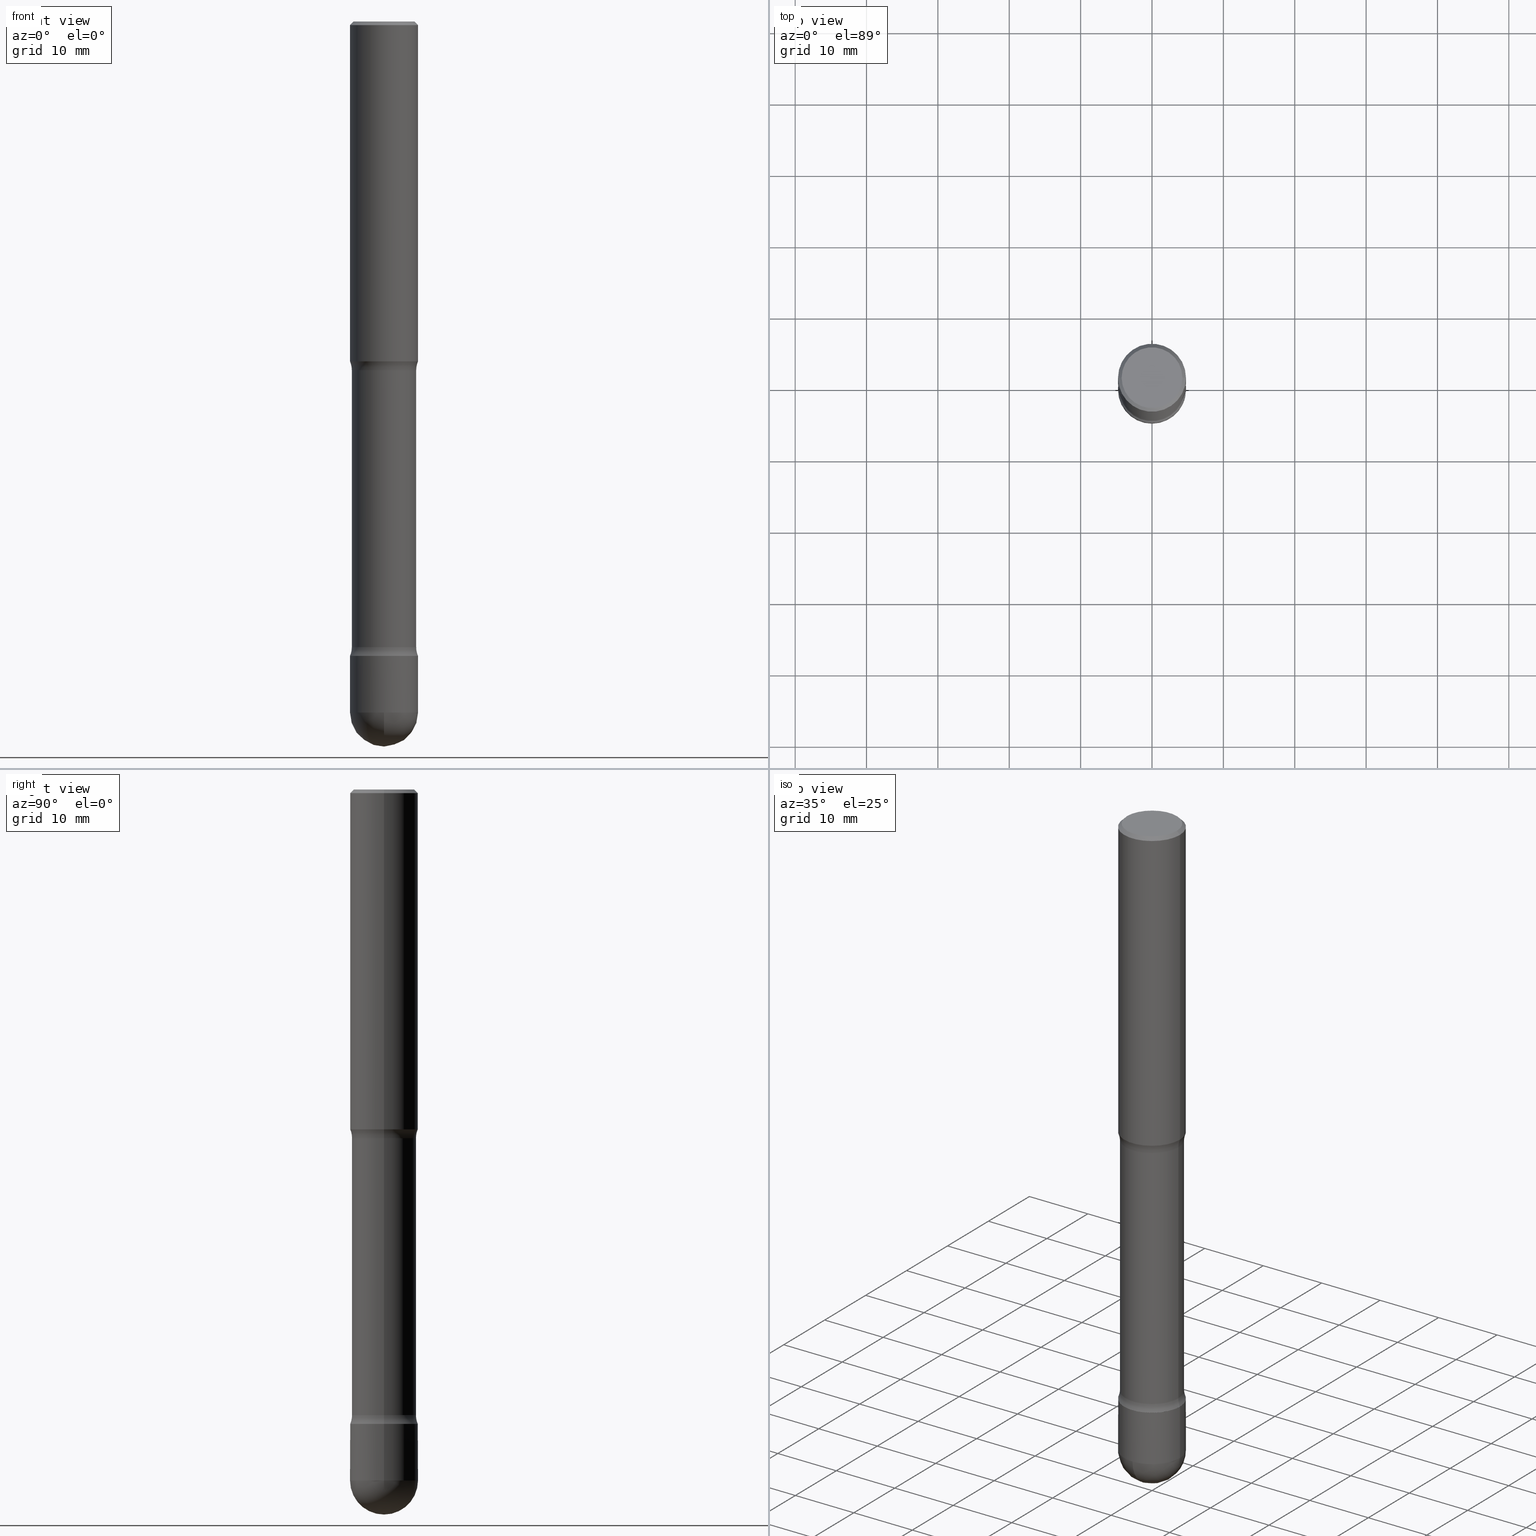
[diagram: canonical four-view strip — front | top / right | iso, engineering-drawing reading convention]
A machine part, canonical four-view strip (front | top / right | iso — engineering-drawing reading convention). The complete STEP part file that produces these views, byte-faithful:
ISO-10303-21;
HEADER;
FILE_DESCRIPTION (( 'STEP AP203' ),
    '1' );
FILE_NAME ('35008.STEP',
    '2024-02-29T19:24:02',
    ( '' ),
    ( '' ),
    'SwSTEP 2.0',
    'SolidWorks 2023',
    '' );
FILE_SCHEMA (( 'CONFIG_CONTROL_DESIGN' ));
ENDSEC;

DATA;
#1 = VECTOR ( 'NONE', #376, 39.37007874015748143 ) ;
#2 = AXIS2_PLACEMENT_3D ( 'NONE', #349, #118, #465 ) ;
#3 = EDGE_LOOP ( 'NONE', ( #392, #314, #312, #436 ) ) ;
#4 = PRODUCT ( '35008', '35008', '', ( #200 ) ) ;
#5 = EDGE_LOOP ( 'NONE', ( #40, #446, #89, #471 ) ) ;
#6 = DIRECTION ( 'NONE',  ( 1.000000000000000000, -6.982962677686265133E-15, 0.000000000000000000 ) ) ;
#7 = DIRECTION ( 'NONE',  ( 2.445468806185136597E-29, -3.491481338843145583E-15, -1.000000000000000000 ) ) ;
#8 = CARTESIAN_POINT ( 'NONE',  ( 8.559140821647976968E-29, -1.222018468595100934E-14, -3.500000000000000000 ) ) ;
#9 = CARTESIAN_POINT ( 'NONE',  ( 0.1874999999999997502, -1.356173001359022508E-15, -0.01999999999999978531 ) ) ;
#10 = PERSON_AND_ORGANIZATION ( #558, #341 ) ;
#11 = DIRECTION ( 'NONE',  ( -2.445468806185136597E-29, 3.491481338843145583E-15, 1.000000000000000000 ) ) ;
#12 = CARTESIAN_POINT ( 'NONE',  ( 8.559140821647976968E-29, -1.222018468595100934E-14, -3.500000000000000000 ) ) ;
#13 = AXIS2_PLACEMENT_3D ( 'NONE', #8, #11, #184 ) ;
#14 = AXIS2_PLACEMENT_3D ( 'NONE', #229, #55, #232 ) ;
#15 = ADVANCED_FACE ( 'NONE', ( #532 ), #337, .T. ) ;
#16 = VERTEX_POINT ( 'NONE', #396 ) ;
#17 = CARTESIAN_POINT ( 'NONE',  ( -0.1874999999999997502, 1.239475875289310921E-15, -0.01999999999999978531 ) ) ;
#18 = APPROVAL_DATE_TIME ( #148, #119 ) ;
#19 = DIRECTION ( 'NONE',  ( 2.445468806185136597E-29, -3.491481338843145583E-15, -1.000000000000000000 ) ) ;
#20 = ADVANCED_FACE ( 'NONE', ( #140 ), #58, .T. ) ;
#21 = DIRECTION ( 'NONE',  ( -6.982962677686266711E-15, -1.000000000000000000, 3.491481338843145583E-15 ) ) ;
#22 = CARTESIAN_POINT ( 'NONE',  ( 0.1874999999999996392, -1.309305502066172642E-15, 9.142831454617361395E-30 ) ) ;
#23 = CIRCLE ( 'NONE', #168, 0.1869999999999996387 ) ;
#24 = CARTESIAN_POINT ( 'NONE',  ( 8.559140821647976968E-29, -1.222018468595100934E-14, -3.500000000000000000 ) ) ;
#25 = AXIS2_PLACEMENT_3D ( 'NONE', #50, #59, #323 ) ;
#26 = PERSON_AND_ORGANIZATION ( #558, #341 ) ;
#27 = CARTESIAN_POINT ( 'NONE',  ( -0.1869999999999996387, -1.088960961525404312E-14, -3.500000000000000000 ) ) ;
#28 = DIRECTION ( 'NONE',  ( -1.000000000000000000, 6.982962677686265922E-15, 0.000000000000000000 ) ) ;
#29 = AXIS2_PLACEMENT_3D ( 'NONE', #485, #49, #488 ) ;
#30 = CIRCLE ( 'NONE', #39, 0.1874999999999996669 ) ;
#31 = CARTESIAN_POINT ( 'NONE',  ( 0.1869999999999996387, -1.352599870667833819E-14, -3.500000000000000000 ) ) ;
#32 = ORIENTED_EDGE ( 'NONE', *, *, #535, .F. ) ;
#33 = CYLINDRICAL_SURFACE ( 'NONE', #273, 0.1874999999999998890 ) ;
#34 = ORIENTED_EDGE ( 'NONE', *, *, #63, .T. ) ;
#35 = CARTESIAN_POINT ( 'NONE',  ( -0.1869999999999996387, -1.089146977007962318E-14, -3.500000000000000000 ) ) ;
#36 = ORIENTED_EDGE ( 'NONE', *, *, #145, .F. ) ;
#37 = VECTOR ( 'NONE', #213, 39.37007874015748143 ) ;
#38 = FACE_OUTER_BOUND ( 'NONE', #432, .T. ) ;
#39 = AXIS2_PLACEMENT_3D ( 'NONE', #241, #452, #443 ) ;
#40 = ORIENTED_EDGE ( 'NONE', *, *, #444, .F. ) ;
#41 = CC_DESIGN_PERSON_AND_ORGANIZATION_ASSIGNMENT ( #445, #455, ( #137 ) ) ;
#42 = ORIENTED_EDGE ( 'NONE', *, *, #418, .T. ) ;
#43 = ADVANCED_FACE ( 'NONE', ( #222 ), #234, .T. ) ;
#44 = DIRECTION ( 'NONE',  ( -1.000000000000000000, 6.982962677686265922E-15, -4.876176775795935793E-29 ) ) ;
#45 = ORIENTED_EDGE ( 'NONE', *, *, #404, .F. ) ;
#46 = EDGE_LOOP ( 'NONE', ( #231, #135, #470, #218 ) ) ;
#47 = ORIENTED_EDGE ( 'NONE', *, *, #547, .F. ) ;
#48 = AXIS2_PLACEMENT_3D ( 'NONE', #472, #86, #174 ) ;
#49 = DIRECTION ( 'NONE',  ( -2.438088387897960049E-29, 3.491481338843145188E-15, 1.000000000000000000 ) ) ;
#50 = CARTESIAN_POINT ( 'NONE',  ( 8.439337806507044109E-29, -1.204913773141870678E-14, -3.451010205144336762 ) ) ;
#51 = ORIENTED_EDGE ( 'NONE', *, *, #159, .T. ) ;
#52 = FACE_OUTER_BOUND ( 'NONE', #5, .T. ) ;
#53 = COORDINATED_UNIVERSAL_TIME_OFFSET ( 5, 0, .BEHIND. ) ;
#54 = ORIENTED_EDGE ( 'NONE', *, *, #379, .F. ) ;
#55 = DIRECTION ( 'NONE',  ( -2.445468806185136597E-29, 3.491481338843145583E-15, 1.000000000000000000 ) ) ;
#56 = ADVANCED_FACE ( 'NONE', ( #492 ), #97, .T. ) ;
#57 = PERSON_AND_ORGANIZATION_ROLE ( 'design_supplier' ) ;
#58 = PLANE ( 'NONE',  #29 ) ;
#59 = DIRECTION ( 'NONE',  ( 2.445468806185136597E-29, -3.491481338843145583E-15, -1.000000000000000000 ) ) ;
#60 = AXIS2_PLACEMENT_3D ( 'NONE', #373, #157, #28 ) ;
#61 = AXIS2_PLACEMENT_3D ( 'NONE', #537, #530, #366 ) ;
#62 = COORDINATED_UNIVERSAL_TIME_OFFSET ( 5, 0, .BEHIND. ) ;
#63 = EDGE_CURVE ( 'NONE', #382, #125, #131, .T. ) ;
#64 = EDGE_CURVE ( 'NONE', #554, #559, #114, .T. ) ;
#65 = ADVANCED_FACE ( 'NONE', ( #182 ), #355, .T. ) ;
#66 = CARTESIAN_POINT ( 'NONE',  ( 0.1674999999999997047, -1.252653207992876119E-15, 8.469775550109222569E-30 ) ) ;
#67 = FACE_OUTER_BOUND ( 'NONE', #212, .T. ) ;
#68 = APPROVAL_DATE_TIME ( #487, #469 ) ;
#69 = CARTESIAN_POINT ( 'NONE',  ( 0.1869999999999996387, -1.352661159257241509E-14, -3.500000000000000000 ) ) ;
#70 = PERSON_AND_ORGANIZATION_ROLE ( 'creator' ) ;
#71 = CC_DESIGN_DATE_AND_TIME_ASSIGNMENT ( #195, #243, ( #412 ) ) ;
#72 = CARTESIAN_POINT ( 'NONE',  ( 4.705057026738065659E-29, -6.717574464863202053E-15, -1.923989794855663904 ) ) ;
#73 = AXIS2_PLACEMENT_3D ( 'NONE', #299, #513, #81 ) ;
#74 = FACE_OUTER_BOUND ( 'NONE', #3, .T. ) ;
#75 = DIRECTION ( 'NONE',  ( -2.445468806185136877E-29, 3.491481338843145188E-15, 1.000000000000000000 ) ) ;
#76 = ADVANCED_FACE ( 'NONE', ( #74 ), #407, .T. ) ;
#77 = CARTESIAN_POINT ( 'NONE',  ( 0.1874999999999997502, -1.356173001359022508E-15, -0.01999999999999978531 ) ) ;
#78 = AXIS2_PLACEMENT_3D ( 'NONE', #281, #357, #278 ) ;
#79 = CARTESIAN_POINT ( 'NONE',  ( 0.000000000000000000, 0.000000000000000000, 0.000000000000000000 ) ) ;
#80 = ORIENTED_EDGE ( 'NONE', *, *, #250, .F. ) ;
#81 = DIRECTION ( 'NONE',  ( -1.000000000000000000, 6.982962677686269077E-15, 0.000000000000000000 ) ) ;
#82 = ORIENTED_EDGE ( 'NONE', *, *, #565, .T. ) ;
#83 = DIRECTION ( 'NONE',  ( 1.000000000000000000, -6.982962677686265133E-15, 0.000000000000000000 ) ) ;
#84 = ORIENTED_EDGE ( 'NONE', *, *, #282, .T. ) ;
#85 = EDGE_CURVE ( 'NONE', #132, #100, #343, .T. ) ;
#86 = DIRECTION ( 'NONE',  ( -1.000000000000000000, 6.982962677686265922E-15, -4.883557194083112901E-29 ) ) ;
#87 = AXIS2_PLACEMENT_3D ( 'NONE', #136, #486, #406 ) ;
#88 = ORIENTED_EDGE ( 'NONE', *, *, #404, .T. ) ;
#89 = ORIENTED_EDGE ( 'NONE', *, *, #402, .T. ) ;
#90 = ORIENTED_EDGE ( 'NONE', *, *, #147, .F. ) ;
#91 = CIRCLE ( 'NONE', #480, 0.1874999999999997502 ) ;
#92 = AXIS2_PLACEMENT_3D ( 'NONE', #296, #292, #419 ) ;
#93 = ORIENTED_EDGE ( 'NONE', *, *, #309, .T. ) ;
#94 = DIRECTION ( 'NONE',  ( 6.860497997771531562E-15, 1.000000000000000000, -3.491481338843145583E-15 ) ) ;
#95 = SHAPE_DEFINITION_REPRESENTATION ( #394, #230 ) ;
#96 = EDGE_CURVE ( 'NONE', #348, #301, #288, .T. ) ;
#97 = CYLINDRICAL_SURFACE ( 'NONE', #207, 0.1874999999999996392 ) ;
#98 = CARTESIAN_POINT ( 'NONE',  ( 0.1875000000000000278, -4.594521943136043171E-15, -1.875000000000001776 ) ) ;
#99 = APPROVAL_STATUS ( 'not_yet_approved' ) ;
#100 = VERTEX_POINT ( 'NONE', #27 ) ;
#101 = DIRECTION ( 'NONE',  ( 1.000000000000000000, -6.982962677686265922E-15, 4.883557194083112340E-29 ) ) ;
#102 = APPROVAL_ROLE ( '' ) ;
#103 = ADVANCED_FACE ( 'NONE', ( #454 ), #328, .F. ) ;
#104 = DIRECTION ( 'NONE',  ( -1.000000000000000000, 6.982962677686266711E-15, 0.000000000000000000 ) ) ;
#105 = DIRECTION ( 'NONE',  ( -0.7071067811865516806, 2.468850131082300448E-15, -0.7071067811865433539 ) ) ;
#106 = CIRCLE ( 'NONE', #505, 0.1874999999999998335 ) ;
#107 = CALENDAR_DATE ( 2024, 29, 2 ) ;
#108 = LINE ( 'NONE', #203, #459 ) ;
#109 = APPLICATION_PROTOCOL_DEFINITION ( 'international standard', 'config_control_design', 1994, #521 ) ;
#110 = CC_DESIGN_PERSON_AND_ORGANIZATION_ASSIGNMENT ( #26, #368, ( #412 ) ) ;
#111 = LINE ( 'NONE', #22, #531 ) ;
#112 = DIRECTION ( 'NONE',  ( 2.445468806185136597E-29, -3.491481338843145583E-15, -1.000000000000000000 ) ) ;
#113 = CARTESIAN_POINT ( 'NONE',  ( 0.000000000000000000, 0.000000000000000000, 0.000000000000000000 ) ) ;
#114 = CIRCLE ( 'NONE', #401, 0.1874999999999996669 ) ;
#115 = CIRCLE ( 'NONE', #467, 0.1873510749934462760 ) ;
#116 = CARTESIAN_POINT ( 'NONE',  ( 4.890937612370220610E-31, -6.982962677686216421E-17, -0.01999999999999978531 ) ) ;
#117 = EDGE_CURVE ( 'NONE', #481, #382, #108, .T. ) ;
#118 = DIRECTION ( 'NONE',  ( -2.445468806185136597E-29, 3.491481338843145583E-15, 1.000000000000000000 ) ) ;
#119 = APPROVAL ( #538, 'UNSPECIFIED' ) ;
#120 = CARTESIAN_POINT ( 'NONE',  ( 0.1873510749934463038, -1.350428058903573597E-14, -3.499648925006552780 ) ) ;
#121 = ORIENTED_EDGE ( 'NONE', *, *, #433, .F. ) ;
#122 = AXIS2_PLACEMENT_3D ( 'NONE', #416, #502, #253 ) ;
#123 = AXIS2_PLACEMENT_3D ( 'NONE', #431, #564, #44 ) ;
#124 = DIRECTION ( 'NONE',  ( 2.445468806185136597E-29, -3.491481338843145583E-15, -1.000000000000000000 ) ) ;
#125 = VERTEX_POINT ( 'NONE', #539 ) ;
#126 = MANIFOLD_SOLID_BREP ( 'Body-Move/Copy2[1]', #351 ) ;
#127 = CARTESIAN_POINT ( 'NONE',  ( 8.559140821647976968E-29, -1.222018468595100934E-14, -3.500000000000000000 ) ) ;
#128 = ORIENTED_EDGE ( 'NONE', *, *, #379, .T. ) ;
#129 = SPHERICAL_SURFACE ( 'NONE', #294, 0.1874999999999998335 ) ;
#130 = ORIENTED_EDGE ( 'NONE', *, *, #522, .T. ) ;
#131 = CIRCLE ( 'NONE', #318, 0.1875000000000000278 ) ;
#132 = VERTEX_POINT ( 'NONE', #69 ) ;
#133 = DIRECTION ( 'NONE',  ( -2.445468806185136597E-29, 3.491481338843145583E-15, 1.000000000000000000 ) ) ;
#134 = VERTEX_POINT ( 'NONE', #66 ) ;
#135 = ORIENTED_EDGE ( 'NONE', *, *, #535, .T. ) ;
#136 = CARTESIAN_POINT ( 'NONE',  ( 8.439337806507040746E-29, -1.204913773141870205E-14, -3.451010205144335430 ) ) ;
#137 = PRODUCT_DEFINITION_FORMATION_WITH_SPECIFIED_SOURCE ( 'ANY', '', #4, .NOT_KNOWN. ) ;
#138 = VECTOR ( 'NONE', #258, 39.37007874015748143 ) ;
#139 = AXIS2_PLACEMENT_3D ( 'NONE', #493, #94, #408 ) ;
#140 = FACE_OUTER_BOUND ( 'NONE', #221, .T. ) ;
#141 = FACE_OUTER_BOUND ( 'NONE', #315, .T. ) ;
#142 = APPROVAL_DATE_TIME ( #409, #251 ) ;
#143 = ADVANCED_FACE ( 'NONE', ( #242 ), #549, .T. ) ;
#144 = VERTEX_POINT ( 'NONE', #247 ) ;
#145 = EDGE_CURVE ( 'NONE', #434, #259, #179, .T. ) ;
#146 = CARTESIAN_POINT ( 'NONE',  ( -0.1873510749934463038, -1.091069334985921751E-14, -3.499648925006552780 ) ) ;
#147 = EDGE_CURVE ( 'NONE', #346, #257, #111, .T. ) ;
#148 = DATE_AND_TIME ( #499, #437 ) ;
#149 = DIRECTION ( 'NONE',  ( 1.000000000000000000, -6.982962677686267499E-15, 4.876176775795935232E-29 ) ) ;
#150 = CYLINDRICAL_SURFACE ( 'NONE', #403, 0.1774999999999998246 ) ;
#151 = PERSON_AND_ORGANIZATION ( #558, #341 ) ;
#152 = CARTESIAN_POINT ( 'NONE',  ( 0.1774999999999998246, -1.343792308055545500E-14, -3.500000000000000000 ) ) ;
#153 = CARTESIAN_POINT ( 'NONE',  ( -0.3024999999999878897, -4.605228254863190623E-15, -1.923989794855663904 ) ) ;
#154 = AXIS2_PLACEMENT_3D ( 'NONE', #237, #527, #320 ) ;
#155 = LINE ( 'NONE', #330, #1 ) ;
#156 = CALENDAR_DATE ( 2024, 29, 2 ) ;
#157 = DIRECTION ( 'NONE',  ( 2.445468806185136597E-29, -3.491481338843145583E-15, -1.000000000000000000 ) ) ;
#158 =( NAMED_UNIT ( * ) SI_UNIT ( $, .STERADIAN. ) SOLID_ANGLE_UNIT ( ) );
#159 = EDGE_CURVE ( 'NONE', #125, #382, #494, .T. ) ;
#160 = DIRECTION ( 'NONE',  ( -1.000000000000000000, 6.982962677686268288E-15, 0.000000000000000000 ) ) ;
#161 = CONICAL_SURFACE ( 'NONE', #255, 0.1874999999999997502, 0.7853981633974541632 ) ;
#162 = CIRCLE ( 'NONE', #285, 0.1249999999999882871 ) ;
#163 = CARTESIAN_POINT ( 'NONE',  ( 4.705057026738065659E-29, -6.717574464863202053E-15, -1.923989794855663904 ) ) ;
#164 = ADVANCED_FACE ( 'NONE', ( #545 ), #161, .T. ) ;
#165 = DIRECTION ( 'NONE',  ( -1.000000000000000000, 6.982962677686265922E-15, -4.883557194083112901E-29 ) ) ;
#166 = ORIENTED_EDGE ( 'NONE', *, *, #563, .F. ) ;
#167 = CARTESIAN_POINT ( 'NONE',  ( 9.392832084576658456E-29, -1.321177005190876857E-14, -3.812500000000000000 ) ) ;
#168 = AXIS2_PLACEMENT_3D ( 'NONE', #24, #112, #293 ) ;
#169 = ORIENTED_EDGE ( 'NONE', *, *, #524, .T. ) ;
#170 = AXIS2_PLACEMENT_3D ( 'NONE', #116, #410, #205 ) ;
#171 = CIRCLE ( 'NONE', #14, 0.1874999999999996669 ) ;
#172 = DIRECTION ( 'NONE',  ( 1.000000000000000000, -6.982962677686266711E-15, 0.000000000000000000 ) ) ;
#173 = ORIENTED_EDGE ( 'NONE', *, *, #515, .F. ) ;
#174 = DIRECTION ( 'NONE',  ( 6.982962677686265922E-15, 1.000000000000000000, -2.913971193241883133E-15 ) ) ;
#175 = VERTEX_POINT ( 'NONE', #196 ) ;
#176 = EDGE_CURVE ( 'NONE', #514, #125, #155, .T. ) ;
#177 = CARTESIAN_POINT ( 'NONE',  ( 0.1774999999999996025, -7.884091872190356263E-15, -1.923989794855663904 ) ) ;
#178 = ORIENTED_EDGE ( 'NONE', *, *, #506, .T. ) ;
#179 = CIRCLE ( 'NONE', #122, 0.1873510749934462760 ) ;
#180 = ORIENTED_EDGE ( 'NONE', *, *, #560, .T. ) ;
#181 = ORIENTED_EDGE ( 'NONE', *, *, #85, .F. ) ;
#182 = FACE_OUTER_BOUND ( 'NONE', #474, .T. ) ;
#183 = LINE ( 'NONE', #286, #484 ) ;
#184 = DIRECTION ( 'NONE',  ( 1.000000000000000000, -6.982962677686268288E-15, 0.000000000000000000 ) ) ;
#185 = CARTESIAN_POINT ( 'NONE',  ( 4.705057026738065659E-29, -6.717574464863202053E-15, -1.923989794855663904 ) ) ;
#186 = COORDINATED_UNIVERSAL_TIME_OFFSET ( 5, 0, .BEHIND. ) ;
#187 = DIMENSIONAL_EXPONENTS ( 1.000000000000000000, 0.000000000000000000, 0.000000000000000000, 0.000000000000000000, 0.000000000000000000, 0.000000000000000000, 0.000000000000000000 ) ;
#188 = CIRCLE ( 'NONE', #483, 0.1774999999999996025 ) ;
#189 = EDGE_CURVE ( 'NONE', #348, #322, #188, .T. ) ;
#190 = VECTOR ( 'NONE', #233, 39.37007874015748143 ) ;
#191 = EDGE_LOOP ( 'NONE', ( #261, #93 ) ) ;
#192 = DIRECTION ( 'NONE',  ( 2.445468806185136597E-29, -3.491481338843145583E-15, -1.000000000000000000 ) ) ;
#193 = ORIENTED_EDGE ( 'NONE', *, *, #117, .F. ) ;
#194 = CARTESIAN_POINT ( 'NONE',  ( -0.1874999999999997502, 1.239475875289310921E-15, -0.01999999999999978531 ) ) ;
#195 = DATE_AND_TIME ( #107, #458 ) ;
#196 = CARTESIAN_POINT ( 'NONE',  ( 9.859374669697428406E-29, -1.385494173919985124E-14, -4.000000000000000000 ) ) ;
#197 = CARTESIAN_POINT ( 'NONE',  ( -0.1874999999999996392, 1.332267629550185285E-15, -9.223003294227931175E-30 ) ) ;
#198 = DIRECTION ( 'NONE',  ( -1.000000000000000000, 6.982962677686265133E-15, 0.000000000000000000 ) ) ;
#199 = TOROIDAL_SURFACE ( 'NONE', #78, 0.3024999999999878897, 0.1249999999999882871 ) ;
#200 = MECHANICAL_CONTEXT ( 'NONE', #521, 'mechanical' ) ;
#201 = DIRECTION ( 'NONE',  ( -6.982962677686266711E-15, -1.000000000000000000, 3.491481338843145583E-15 ) ) ;
#202 = DIRECTION ( 'NONE',  ( 2.445468806185136597E-29, -3.491481338843145583E-15, -1.000000000000000000 ) ) ;
#203 = CARTESIAN_POINT ( 'NONE',  ( 0.1874999999999998890, -1.350652806053316993E-14, -3.500000000000000000 ) ) ;
#204 = ADVANCED_FACE ( 'NONE', ( #462 ), #497, .T. ) ;
#205 = DIRECTION ( 'NONE',  ( -1.000000000000000000, 6.982962677686265133E-15, 0.000000000000000000 ) ) ;
#206 = EDGE_CURVE ( 'NONE', #434, #144, #300, .T. ) ;
#207 = AXIS2_PLACEMENT_3D ( 'NONE', #536, #133, #149 ) ;
#208 = AXIS2_PLACEMENT_3D ( 'NONE', #364, #489, #541 ) ;
#209 = DIRECTION ( 'NONE',  ( 6.860497997771531562E-15, 1.000000000000000000, -3.491481338843145583E-15 ) ) ;
#210 = ORIENTED_EDGE ( 'NONE', *, *, #145, .T. ) ;
#211 = CARTESIAN_POINT ( 'NONE',  ( 1.309305502066266713E-15, 0.1874999999999864830, -3.812500000000000444 ) ) ;
#212 = EDGE_LOOP ( 'NONE', ( #526, #42, #34, #173 ) ) ;
#213 = DIRECTION ( 'NONE',  ( -0.7071067811859972352, 7.493145998868366231E-15, 0.7071067811870977993 ) ) ;
#214 = ORIENTED_EDGE ( 'NONE', *, *, #96, .T. ) ;
#215 = AXIS2_PLACEMENT_3D ( 'NONE', #236, #362, #438 ) ;
#216 = APPLICATION_CONTEXT ( 'configuration controlled 3d designs of mechanical parts and assemblies' ) ;
#217 = DIRECTION ( 'NONE',  ( 2.445468806185136597E-29, -3.491481338843145583E-15, -1.000000000000000000 ) ) ;
#218 = ORIENTED_EDGE ( 'NONE', *, *, #422, .F. ) ;
#219 = ADVANCED_FACE ( 'NONE', ( #507 ), #511, .T. ) ;
#220 = CARTESIAN_POINT ( 'NONE',  ( 0.1874999999999996669, -1.407503414721142196E-14, -3.812500000000000000 ) ) ;
#221 = EDGE_LOOP ( 'NONE', ( #354, #32 ) ) ;
#222 = FACE_OUTER_BOUND ( 'NONE', #277, .T. ) ;
#223 = ADVANCED_FACE ( 'NONE', ( #264 ), #302, .T. ) ;
#224 = AXIS2_PLACEMENT_3D ( 'NONE', #456, #19, #160 ) ;
#225 = ORIENTED_EDGE ( 'NONE', *, *, #515, .T. ) ;
#226 = ORIENTED_EDGE ( 'NONE', *, *, #524, .F. ) ;
#227 = DIRECTION ( 'NONE',  ( -1.000000000000000000, 6.982962677686271444E-15, 0.000000000000000000 ) ) ;
#228 = EDGE_LOOP ( 'NONE', ( #193, #307, #405, #359 ) ) ;
#229 = CARTESIAN_POINT ( 'NONE',  ( 9.323349823580833275E-29, -1.331127260433949088E-14, -3.812500000000000000 ) ) ;
#230 = ADVANCED_BREP_SHAPE_REPRESENTATION ( '35008', ( #126, #491, #540 ), #271 ) ;
#231 = ORIENTED_EDGE ( 'NONE', *, *, #276, .F. ) ;
#232 = DIRECTION ( 'NONE',  ( 1.000000000000000000, -6.982962677686265133E-15, 0.000000000000000000 ) ) ;
#233 = DIRECTION ( 'NONE',  ( 0.7071067811859972352, -2.468850131076492854E-15, 0.7071067811870977993 ) ) ;
#234 = CONICAL_SURFACE ( 'NONE', #215, 0.1869999999999996387, 0.7853981633966701237 ) ;
#235 = CIRCLE ( 'NONE', #61, 0.1874999999999998335 ) ;
#236 = CARTESIAN_POINT ( 'NONE',  ( 8.559140821647976968E-29, -1.222018468595100934E-14, -3.500000000000000000 ) ) ;
#237 = CARTESIAN_POINT ( 'NONE',  ( 4.890937612370220610E-31, -6.982962677686216421E-17, -0.01999999999999978531 ) ) ;
#238 = CALENDAR_DATE ( 2024, 29, 2 ) ;
#239 = EDGE_CURVE ( 'NONE', #16, #134, #448, .T. ) ;
#240 = DIRECTION ( 'NONE',  ( 2.445468806185136597E-29, -3.491481338843145583E-15, -1.000000000000000000 ) ) ;
#241 = CARTESIAN_POINT ( 'NONE',  ( 9.323349823580833275E-29, -1.331127260433949088E-14, -3.812500000000000000 ) ) ;
#242 = FACE_OUTER_BOUND ( 'NONE', #468, .T. ) ;
#243 = DATE_TIME_ROLE ( 'classification_date' ) ;
#244 = APPROVAL_PERSON_ORGANIZATION ( #151, #251, #102 ) ;
#245 = CARTESIAN_POINT ( 'NONE',  ( -0.3025000000000078182, -9.936791521418551783E-15, -3.451010205144335430 ) ) ;
#246 = AXIS2_PLACEMENT_3D ( 'NONE', #297, #347, #508 ) ;
#247 = CARTESIAN_POINT ( 'NONE',  ( -0.1775000000000000189, -1.080966185612939350E-14, -3.451010205144336762 ) ) ;
#248 = CC_DESIGN_PERSON_AND_ORGANIZATION_ASSIGNMENT ( #327, #57, ( #137 ) ) ;
#249 = LENGTH_MEASURE_WITH_UNIT ( LENGTH_MEASURE( 0.02539999999999999897 ), #546 );
#250 = EDGE_CURVE ( 'NONE', #144, #301, #556, .T. ) ;
#251 = APPROVAL ( #99, 'UNSPECIFIED' ) ;
#252 = ADVANCED_FACE ( 'NONE', ( #38 ), #519, .F. ) ;
#253 = DIRECTION ( 'NONE',  ( -1.000000000000000000, 6.982962677686271444E-15, 0.000000000000000000 ) ) ;
#254 = CARTESIAN_POINT ( 'NONE',  ( 0.3025000000000078182, -1.412443837574464437E-14, -3.451010205144335430 ) ) ;
#255 = AXIS2_PLACEMENT_3D ( 'NONE', #290, #240, #198 ) ;
#256 = CARTESIAN_POINT ( 'NONE',  ( 9.323349823580833275E-29, -1.331127260433949088E-14, -3.812500000000000000 ) ) ;
#257 = VERTEX_POINT ( 'NONE', #466 ) ;
#258 = DIRECTION ( 'NONE',  ( 0.7071067811865516806, -7.319954787623270245E-15, -0.7071067811865433539 ) ) ;
#259 = VERTEX_POINT ( 'NONE', #120 ) ;
#260 = DIRECTION ( 'NONE',  ( 2.445468806185136597E-29, -3.491481338843145583E-15, -1.000000000000000000 ) ) ;
#261 = ORIENTED_EDGE ( 'NONE', *, *, #361, .T. ) ;
#262 = AXIS2_PLACEMENT_3D ( 'NONE', #256, #551, #83 ) ;
#263 = TOROIDAL_SURFACE ( 'NONE', #87, 0.3025000000000078182, 0.1250000000000078826 ) ;
#264 = FACE_OUTER_BOUND ( 'NONE', #509, .T. ) ;
#265 = ORIENTED_EDGE ( 'NONE', *, *, #282, .F. ) ;
#266 = EDGE_LOOP ( 'NONE', ( #520, #82 ) ) ;
#267 = ORIENTED_EDGE ( 'NONE', *, *, #463, .F. ) ;
#268 = CARTESIAN_POINT ( 'NONE',  ( 9.323349823580833275E-29, -1.331127260433949088E-14, -3.812500000000000000 ) ) ;
#269 = CC_DESIGN_APPROVAL ( #469, ( #412 ) ) ;
#270 = CARTESIAN_POINT ( 'NONE',  ( -0.1874999999999996669, -1.143346101559506542E-14, -3.812500000000000000 ) ) ;
#271 =( GEOMETRIC_REPRESENTATION_CONTEXT ( 3 ) GLOBAL_UNCERTAINTY_ASSIGNED_CONTEXT ( ( #377 ) ) GLOBAL_UNIT_ASSIGNED_CONTEXT ( ( #291, #371, #158 ) ) REPRESENTATION_CONTEXT ( 'NONE', 'WORKASPACE' ) );
#272 = AXIS2_PLACEMENT_3D ( 'NONE', #548, #369, #504 ) ;
#273 = AXIS2_PLACEMENT_3D ( 'NONE', #127, #260, #561 ) ;
#274 = ORIENTED_EDGE ( 'NONE', *, *, #96, .F. ) ;
#275 = CARTESIAN_POINT ( 'NONE',  ( -1.332267629550092396E-15, -0.1875000000000130174, -3.812499999999999112 ) ) ;
#276 = EDGE_CURVE ( 'NONE', #134, #481, #388, .T. ) ;
#277 = EDGE_LOOP ( 'NONE', ( #265, #181, #128, #517 ) ) ;
#278 = DIRECTION ( 'NONE',  ( -1.000000000000000000, 6.982962677686266711E-15, -4.883557194083112340E-29 ) ) ;
#279 = DATE_TIME_ROLE ( 'creation_date' ) ;
#280 = VERTEX_POINT ( 'NONE', #425 ) ;
#281 = CARTESIAN_POINT ( 'NONE',  ( 4.705057026738065659E-29, -6.717574464863202053E-15, -1.923989794855663904 ) ) ;
#282 = EDGE_CURVE ( 'NONE', #100, #434, #381, .T. ) ;
#283 = COORDINATED_UNIVERSAL_TIME_OFFSET ( 5, 0, .BEHIND. ) ;
#284 = CIRCLE ( 'NONE', #518, 0.1250000000000078826 ) ;
#285 = AXIS2_PLACEMENT_3D ( 'NONE', #153, #21, #360 ) ;
#286 = CARTESIAN_POINT ( 'NONE',  ( -0.1774999999999998246, -1.098070881066169763E-14, -3.500000000000000000 ) ) ;
#287 = CALENDAR_DATE ( 2024, 29, 2 ) ;
#288 = LINE ( 'NONE', #152, #420 ) ;
#289 = DIRECTION ( 'NONE',  ( -1.000000000000000000, 6.982962677686269077E-15, 0.000000000000000000 ) ) ;
#290 = CARTESIAN_POINT ( 'NONE',  ( 4.890937612370220610E-31, -6.982962677686216421E-17, -0.01999999999999978531 ) ) ;
#291 =( CONVERSION_BASED_UNIT ( 'INCH', #249 ) LENGTH_UNIT ( ) NAMED_UNIT ( #187 ) );
#292 = DIRECTION ( 'NONE',  ( 2.445468806185136597E-29, -3.491481338843145583E-15, -1.000000000000000000 ) ) ;
#293 = DIRECTION ( 'NONE',  ( -1.000000000000000000, 6.982962677686268288E-15, 0.000000000000000000 ) ) ;
#294 = AXIS2_PLACEMENT_3D ( 'NONE', #167, #165, #339 ) ;
#295 = EDGE_CURVE ( 'NONE', #559, #346, #503, .T. ) ;
#296 = CARTESIAN_POINT ( 'NONE',  ( 4.585254011597135603E-29, -6.546527510330903440E-15, -1.875000000000001776 ) ) ;
#297 = CARTESIAN_POINT ( 'NONE',  ( 0.000000000000000000, 0.000000000000000000, 0.000000000000000000 ) ) ;
#298 = LOCAL_TIME ( 14, 24, 2.000000000000000000, #62 ) ;
#299 = CARTESIAN_POINT ( 'NONE',  ( 8.439337806507044109E-29, -1.204913773141870678E-14, -3.451010205144336762 ) ) ;
#300 = CIRCLE ( 'NONE', #428, 0.1250000000000078826 ) ;
#301 = VERTEX_POINT ( 'NONE', #384 ) ;
#302 = CYLINDRICAL_SURFACE ( 'NONE', #246, 0.1874999999999996392 ) ;
#303 = ORIENTED_EDGE ( 'NONE', *, *, #463, .T. ) ;
#304 = FACE_OUTER_BOUND ( 'NONE', #424, .T. ) ;
#305 = ORIENTED_EDGE ( 'NONE', *, *, #418, .F. ) ;
#306 = PLANE ( 'NONE',  #123 ) ;
#307 = ORIENTED_EDGE ( 'NONE', *, *, #422, .T. ) ;
#308 = EDGE_CURVE ( 'NONE', #259, #301, #284, .T. ) ;
#309 = EDGE_CURVE ( 'NONE', #280, #257, #353, .T. ) ;
#310 = ADVANCED_FACE ( 'NONE', ( #345 ), #33, .T. ) ;
#311 = CIRCLE ( 'NONE', #2, 0.1874999999999996392 ) ;
#312 = ORIENTED_EDGE ( 'NONE', *, *, #159, .F. ) ;
#313 = VERTEX_POINT ( 'NONE', #211 ) ;
#314 = ORIENTED_EDGE ( 'NONE', *, *, #117, .T. ) ;
#315 = EDGE_LOOP ( 'NONE', ( #180, #214, #80, #344 ) ) ;
#316 = DIRECTION ( 'NONE',  ( 2.445468806185136877E-29, -3.491481338843145188E-15, -1.000000000000000000 ) ) ;
#317 = AXIS2_PLACEMENT_3D ( 'NONE', #185, #501, #289 ) ;
#318 = AXIS2_PLACEMENT_3D ( 'NONE', #478, #324, #104 ) ;
#319 = EDGE_LOOP ( 'NONE', ( #47, #169, #512, #267 ) ) ;
#320 = DIRECTION ( 'NONE',  ( -1.000000000000000000, 6.982962677686265133E-15, 0.000000000000000000 ) ) ;
#321 = ADVANCED_FACE ( 'NONE', ( #304 ), #129, .T. ) ;
#322 = VERTEX_POINT ( 'NONE', #342 ) ;
#323 = DIRECTION ( 'NONE',  ( -1.000000000000000000, 6.982962677686269077E-15, 0.000000000000000000 ) ) ;
#324 = DIRECTION ( 'NONE',  ( 2.445468806185136597E-29, -3.491481338843145583E-15, -1.000000000000000000 ) ) ;
#325 = ADVANCED_FACE ( 'NONE', ( #427 ), #306, .F. ) ;
#326 = CC_DESIGN_PERSON_AND_ORGANIZATION_ASSIGNMENT ( #449, #70, ( #363 ) ) ;
#327 = PERSON_AND_ORGANIZATION ( #558, #341 ) ;
#328 = TOROIDAL_SURFACE ( 'NONE', #440, 0.3024999999999878897, 0.1249999999999882871 ) ;
#329 = CIRCLE ( 'NONE', #25, 0.1775000000000000189 ) ;
#330 = CARTESIAN_POINT ( 'NONE',  ( -0.1874999999999998890, -1.091087918388483433E-14, -3.500000000000000000 ) ) ;
#331 = LINE ( 'NONE', #17, #358 ) ;
#332 = APPROVAL_ROLE ( '' ) ;
#333 = DIRECTION ( 'NONE',  ( 2.445468806185136597E-29, -3.491481338843145583E-15, -1.000000000000000000 ) ) ;
#334 = DIRECTION ( 'NONE',  ( 1.000000000000000000, 0.000000000000000000, 0.000000000000000000 ) ) ;
#335 = APPROVAL_ROLE ( '' ) ;
#336 = DIRECTION ( 'NONE',  ( -1.000000000000000000, 6.982962677686266711E-15, -4.883557194083112340E-29 ) ) ;
#337 = CONICAL_SURFACE ( 'NONE', #13, 0.1869999999999996387, 0.7853981633966701237 ) ;
#338 = DIRECTION ( 'NONE',  ( 1.000000000000000000, -6.982962677686273021E-15, 0.000000000000000000 ) ) ;
#339 = DIRECTION ( 'NONE',  ( 6.982962677686265922E-15, 1.000000000000000000, -2.913971193241883133E-15 ) ) ;
#340 = ORIENTED_EDGE ( 'NONE', *, *, #295, .F. ) ;
#341 = ORGANIZATION ( 'UNSPECIFIED', 'UNSPECIFIED', '' ) ;
#342 = CARTESIAN_POINT ( 'NONE',  ( -0.1774999999999996025, -5.478098589573891921E-15, -1.923989794855663904 ) ) ;
#343 = CIRCLE ( 'NONE', #224, 0.1869999999999996387 ) ;
#344 = ORIENTED_EDGE ( 'NONE', *, *, #506, .F. ) ;
#345 = FACE_OUTER_BOUND ( 'NONE', #228, .T. ) ;
#346 = VERTEX_POINT ( 'NONE', #220 ) ;
#347 = DIRECTION ( 'NONE',  ( -2.445468806185136597E-29, 3.491481338843145583E-15, 1.000000000000000000 ) ) ;
#348 = VERTEX_POINT ( 'NONE', #177 ) ;
#349 = CARTESIAN_POINT ( 'NONE',  ( 8.559140821647976968E-29, -1.222018468595100934E-14, -3.500000000000000000 ) ) ;
#350 = EDGE_LOOP ( 'NONE', ( #562, #356, #477, #389, #442 ) ) ;
#351 = CLOSED_SHELL ( 'NONE', ( #223, #219, #321, #56, #325 ) ) ;
#352 = CIRCLE ( 'NONE', #139, 0.1249999999999882871 ) ;
#353 = CIRCLE ( 'NONE', #495, 0.1874999999999996392 ) ;
#354 = ORIENTED_EDGE ( 'NONE', *, *, #239, .F. ) ;
#355 = CYLINDRICAL_SURFACE ( 'NONE', #60, 0.1774999999999998246 ) ;
#356 = ORIENTED_EDGE ( 'NONE', *, *, #64, .T. ) ;
#357 = DIRECTION ( 'NONE',  ( 2.445468806185136597E-29, -3.491481338843145583E-15, -1.000000000000000000 ) ) ;
#358 = VECTOR ( 'NONE', #105, 39.37007874015748143 ) ;
#359 = ORIENTED_EDGE ( 'NONE', *, *, #63, .F. ) ;
#360 = DIRECTION ( 'NONE',  ( 1.000000000000000000, -6.982962677686264344E-15, 0.000000000000000000 ) ) ;
#361 = EDGE_CURVE ( 'NONE', #257, #280, #311, .T. ) ;
#362 = DIRECTION ( 'NONE',  ( -2.445468806185136597E-29, 3.491481338843145583E-15, 1.000000000000000000 ) ) ;
#363 = PRODUCT_DEFINITION ( 'UNKNOWN', '', #137, #479 ) ;
#364 = CARTESIAN_POINT ( 'NONE',  ( 0.000000000000000000, 0.000000000000000000, 0.000000000000000000 ) ) ;
#365 = APPLICATION_PROTOCOL_DEFINITION ( 'international standard', 'config_control_design', 1994, #216 ) ;
#366 = DIRECTION ( 'NONE',  ( -7.105427357601001070E-15, -1.000000000000000000, 0.000000000000000000 ) ) ;
#367 = APPROVAL_PERSON_ORGANIZATION ( #10, #119, #332 ) ;
#368 = PERSON_AND_ORGANIZATION_ROLE ( 'classification_officer' ) ;
#369 = DIRECTION ( 'NONE',  ( 2.445468806185136597E-29, -3.491481338843145583E-15, -1.000000000000000000 ) ) ;
#370 = PRODUCT_RELATED_PRODUCT_CATEGORY ( 'detail', '', ( #4 ) ) ;
#371 =( NAMED_UNIT ( * ) PLANE_ANGLE_UNIT ( ) SI_UNIT ( $, .RADIAN. ) );
#372 = PERSON_AND_ORGANIZATION ( #558, #341 ) ;
#373 = CARTESIAN_POINT ( 'NONE',  ( 8.559140821647976968E-29, -1.222018468595100934E-14, -3.500000000000000000 ) ) ;
#374 = DIRECTION ( 'NONE',  ( 2.445468806185136877E-29, -3.491481338843145188E-15, -1.000000000000000000 ) ) ;
#375 = CC_DESIGN_SECURITY_CLASSIFICATION ( #412, ( #137 ) ) ;
#376 = DIRECTION ( 'NONE',  ( 2.445468806185136877E-29, -3.491481338843145188E-15, -1.000000000000000000 ) ) ;
#377 = UNCERTAINTY_MEASURE_WITH_UNIT (LENGTH_MEASURE( 1.000000000000000082E-05 ), #291, 'distance_accuracy_value', 'NONE');
#378 = DIRECTION ( 'NONE',  ( -1.000000000000000000, 6.982962677686266711E-15, -4.876176775795936353E-29 ) ) ;
#379 = EDGE_CURVE ( 'NONE', #132, #259, #421, .T. ) ;
#380 = ORIENTED_EDGE ( 'NONE', *, *, #402, .F. ) ;
#381 = LINE ( 'NONE', #35, #37 ) ;
#382 = VERTEX_POINT ( 'NONE', #98 ) ;
#383 = CC_DESIGN_APPROVAL ( #251, ( #363 ) ) ;
#384 = CARTESIAN_POINT ( 'NONE',  ( 0.1775000000000000189, -1.060109449274539731E-14, -3.451010205144336762 ) ) ;
#385 = AXIS2_PLACEMENT_3D ( 'NONE', #553, #124, #423 ) ;
#386 = EDGE_LOOP ( 'NONE', ( #305, #391, #225, #51 ) ) ;
#387 = ADVANCED_FACE ( 'NONE', ( #67 ), #199, .F. ) ;
#388 = LINE ( 'NONE', #77, #138 ) ;
#389 = ORIENTED_EDGE ( 'NONE', *, *, #147, .T. ) ;
#390 = DIRECTION ( 'NONE',  ( -1.000000000000000000, 6.860497997771532351E-15, 0.000000000000000000 ) ) ;
#391 = ORIENTED_EDGE ( 'NONE', *, *, #560, .F. ) ;
#392 = ORIENTED_EDGE ( 'NONE', *, *, #563, .T. ) ;
#393 = CIRCLE ( 'NONE', #154, 0.1874999999999997502 ) ;
#394 = PRODUCT_DEFINITION_SHAPE ( 'NONE', 'NONE',  #363 ) ;
#395 = EDGE_LOOP ( 'NONE', ( #529, #84, #210, #54 ) ) ;
#396 = CARTESIAN_POINT ( 'NONE',  ( -0.1674999999999997047, 1.169646248512447623E-15, -8.167596099458179281E-30 ) ) ;
#397 = DIRECTION ( 'NONE',  ( -1.000000000000000000, 6.982962677686265922E-15, 0.000000000000000000 ) ) ;
#398 = ORIENTED_EDGE ( 'NONE', *, *, #308, .F. ) ;
#399 = ORIENTED_EDGE ( 'NONE', *, *, #206, .T. ) ;
#400 = CARTESIAN_POINT ( 'NONE',  ( 8.558282278702870069E-29, -1.221895891416285396E-14, -3.499648925006552780 ) ) ;
#401 = AXIS2_PLACEMENT_3D ( 'NONE', #268, #435, #6 ) ;
#402 = EDGE_CURVE ( 'NONE', #301, #144, #329, .T. ) ;
#403 = AXIS2_PLACEMENT_3D ( 'NONE', #12, #192, #397 ) ;
#404 = EDGE_CURVE ( 'NONE', #346, #313, #30, .T. ) ;
#405 = ORIENTED_EDGE ( 'NONE', *, *, #176, .T. ) ;
#406 = DIRECTION ( 'NONE',  ( -1.000000000000000000, 6.982962677686267499E-15, -4.883557194083113462E-29 ) ) ;
#407 = CYLINDRICAL_SURFACE ( 'NONE', #272, 0.1874999999999998890 ) ;
#408 = DIRECTION ( 'NONE',  ( -1.000000000000000000, 6.860497997771528407E-15, 0.000000000000000000 ) ) ;
#409 = DATE_AND_TIME ( #156, #555 ) ;
#410 = DIRECTION ( 'NONE',  ( 2.445468806185136597E-29, -3.491481338843145583E-15, -1.000000000000000000 ) ) ;
#411 = DIRECTION ( 'NONE',  ( 0.000000000000000000, 0.000000000000000000, 1.000000000000000000 ) ) ;
#412 = SECURITY_CLASSIFICATION ( '', '', #496 ) ;
#413 = DATE_AND_TIME ( #238, #298 ) ;
#414 = AXIS2_PLACEMENT_3D ( 'NONE', #79, #217, #378 ) ;
#415 = DIRECTION ( 'NONE',  ( -1.000000000000000000, 6.982962677686269077E-15, 0.000000000000000000 ) ) ;
#416 = CARTESIAN_POINT ( 'NONE',  ( 8.558282278702870069E-29, -1.221895891416285396E-14, -3.499648925006552780 ) ) ;
#417 = DIRECTION ( 'NONE',  ( -1.000000000000000000, 6.982962677686265133E-15, 0.000000000000000000 ) ) ;
#418 = EDGE_CURVE ( 'NONE', #348, #382, #352, .T. ) ;
#419 = DIRECTION ( 'NONE',  ( -1.000000000000000000, 6.982962677686266711E-15, 0.000000000000000000 ) ) ;
#420 = VECTOR ( 'NONE', #543, 39.37007874015748143 ) ;
#421 = LINE ( 'NONE', #31, #190 ) ;
#422 = EDGE_CURVE ( 'NONE', #481, #514, #393, .T. ) ;
#423 = DIRECTION ( 'NONE',  ( -1.000000000000000000, 6.982962677686267499E-15, -4.883557194083113462E-29 ) ) ;
#424 = EDGE_LOOP ( 'NONE', ( #226, #429, #45, #340 ) ) ;
#425 = CARTESIAN_POINT ( 'NONE',  ( -0.1874999999999996392, -1.143346101559506542E-14, -3.500000000000000000 ) ) ;
#426 = ORIENTED_EDGE ( 'NONE', *, *, #276, .T. ) ;
#427 = FACE_OUTER_BOUND ( 'NONE', #191, .T. ) ;
#428 = AXIS2_PLACEMENT_3D ( 'NONE', #245, #201, #338 ) ;
#429 = ORIENTED_EDGE ( 'NONE', *, *, #547, .T. ) ;
#430 = CIRCLE ( 'NONE', #317, 0.1774999999999996025 ) ;
#431 = CARTESIAN_POINT ( 'NONE',  ( 8.559140821647976968E-29, -1.222018468595100934E-14, -3.500000000000000000 ) ) ;
#432 = EDGE_LOOP ( 'NONE', ( #398, #36, #399, #525 ) ) ;
#433 = EDGE_CURVE ( 'NONE', #16, #514, #331, .T. ) ;
#434 = VERTEX_POINT ( 'NONE', #146 ) ;
#435 = DIRECTION ( 'NONE',  ( -2.445468806185136597E-29, 3.491481338843145583E-15, 1.000000000000000000 ) ) ;
#436 = ORIENTED_EDGE ( 'NONE', *, *, #176, .F. ) ;
#437 = LOCAL_TIME ( 14, 24, 2.000000000000000000, #544 ) ;
#438 = DIRECTION ( 'NONE',  ( 1.000000000000000000, -6.982962677686268288E-15, 0.000000000000000000 ) ) ;
#439 = DIRECTION ( 'NONE',  ( 6.982962677686266711E-15, 1.000000000000000000, 0.000000000000000000 ) ) ;
#440 = AXIS2_PLACEMENT_3D ( 'NONE', #72, #451, #336 ) ;
#441 = ORIENTED_EDGE ( 'NONE', *, *, #361, .F. ) ;
#442 = ORIENTED_EDGE ( 'NONE', *, *, #309, .F. ) ;
#443 = DIRECTION ( 'NONE',  ( 1.000000000000000000, -6.982962677686265133E-15, 0.000000000000000000 ) ) ;
#444 = EDGE_CURVE ( 'NONE', #259, #434, #115, .T. ) ;
#445 = PERSON_AND_ORGANIZATION ( #558, #341 ) ;
#446 = ORIENTED_EDGE ( 'NONE', *, *, #308, .T. ) ;
#447 = LOCAL_TIME ( 14, 24, 2.000000000000000000, #186 ) ;
#448 = CIRCLE ( 'NONE', #414, 0.1674999999999997047 ) ;
#449 = PERSON_AND_ORGANIZATION ( #558, #341 ) ;
#450 = CIRCLE ( 'NONE', #208, 0.1674999999999997047 ) ;
#451 = DIRECTION ( 'NONE',  ( 2.445468806185136597E-29, -3.491481338843145583E-15, -1.000000000000000000 ) ) ;
#452 = DIRECTION ( 'NONE',  ( -2.445468806185136597E-29, 3.491481338843145583E-15, 1.000000000000000000 ) ) ;
#453 = APPROVAL_STATUS ( 'not_yet_approved' ) ;
#454 = FACE_OUTER_BOUND ( 'NONE', #386, .T. ) ;
#455 = PERSON_AND_ORGANIZATION_ROLE ( 'creator' ) ;
#456 = CARTESIAN_POINT ( 'NONE',  ( 8.559140821647976968E-29, -1.222018468595100934E-14, -3.500000000000000000 ) ) ;
#457 = CARTESIAN_POINT ( 'NONE',  ( 4.890937612370220610E-31, -6.982962677686216421E-17, -0.01999999999999978531 ) ) ;
#458 = LOCAL_TIME ( 14, 24, 2.000000000000000000, #53 ) ;
#459 = VECTOR ( 'NONE', #374, 39.37007874015748143 ) ;
#460 = DIRECTION ( 'NONE',  ( 2.438088387897960049E-29, -3.491481338843145188E-15, -1.000000000000000000 ) ) ;
#461 = ADVANCED_FACE ( 'NONE', ( #52 ), #263, .F. ) ;
#462 = FACE_OUTER_BOUND ( 'NONE', #266, .T. ) ;
#463 = EDGE_CURVE ( 'NONE', #313, #554, #171, .T. ) ;
#464 = CC_DESIGN_PERSON_AND_ORGANIZATION_ASSIGNMENT ( #490, #534, ( #4 ) ) ;
#465 = DIRECTION ( 'NONE',  ( 1.000000000000000000, -6.982962677686266711E-15, 0.000000000000000000 ) ) ;
#466 = CARTESIAN_POINT ( 'NONE',  ( 0.1874999999999996392, -1.352949018801718119E-14, -3.500000000000000000 ) ) ;
#467 = AXIS2_PLACEMENT_3D ( 'NONE', #400, #7, #227 ) ;
#468 = EDGE_LOOP ( 'NONE', ( #566, #426, #166, #121 ) ) ;
#469 = APPROVAL ( #453, 'UNSPECIFIED' ) ;
#470 = ORIENTED_EDGE ( 'NONE', *, *, #433, .T. ) ;
#471 = ORIENTED_EDGE ( 'NONE', *, *, #206, .F. ) ;
#472 = CARTESIAN_POINT ( 'NONE',  ( 9.392832084576658456E-29, -1.321177005190876857E-14, -3.812500000000000000 ) ) ;
#473 = CLOSED_SHELL ( 'NONE', ( #15, #461, #475, #387, #76, #143, #164, #310, #103, #65, #252, #43, #204, #20 ) ) ;
#474 = EDGE_LOOP ( 'NONE', ( #274, #552, #178, #380 ) ) ;
#475 = ADVANCED_FACE ( 'NONE', ( #141 ), #150, .T. ) ;
#476 = VECTOR ( 'NONE', #482, 39.37007874015748143 ) ;
#477 = ORIENTED_EDGE ( 'NONE', *, *, #295, .T. ) ;
#478 = CARTESIAN_POINT ( 'NONE',  ( 4.585254011597135603E-29, -6.546527510330903440E-15, -1.875000000000001776 ) ) ;
#479 = DESIGN_CONTEXT ( 'detailed design', #216, 'design' ) ;
#480 = AXIS2_PLACEMENT_3D ( 'NONE', #457, #202, #417 ) ;
#481 = VERTEX_POINT ( 'NONE', #9 ) ;
#482 = DIRECTION ( 'NONE',  ( -2.445468806185136877E-29, 3.491481338843145188E-15, 1.000000000000000000 ) ) ;
#483 = AXIS2_PLACEMENT_3D ( 'NONE', #163, #333, #415 ) ;
#484 = VECTOR ( 'NONE', #316, 39.37007874015748143 ) ;
#485 = CARTESIAN_POINT ( 'NONE',  ( 1.169646248512447623E-15, 0.1674999999999997047, -5.826888680111756689E-16 ) ) ;
#486 = DIRECTION ( 'NONE',  ( 2.445468806185136597E-29, -3.491481338843145583E-15, -1.000000000000000000 ) ) ;
#487 = DATE_AND_TIME ( #287, #447 ) ;
#488 = DIRECTION ( 'NONE',  ( 1.000000000000000000, -6.982962677686265922E-15, 4.876176775795935793E-29 ) ) ;
#489 = DIRECTION ( 'NONE',  ( 2.445468806185136597E-29, -3.491481338843145583E-15, -1.000000000000000000 ) ) ;
#490 = PERSON_AND_ORGANIZATION ( #558, #341 ) ;
#491 = MANIFOLD_SOLID_BREP ( 'Body-Move/Copy2[2]', #473 ) ;
#492 = FACE_OUTER_BOUND ( 'NONE', #350, .T. ) ;
#493 = CARTESIAN_POINT ( 'NONE',  ( 0.3024999999999878897, -8.792875109189006321E-15, -1.923989794855663904 ) ) ;
#494 = CIRCLE ( 'NONE', #92, 0.1875000000000000278 ) ;
#495 = AXIS2_PLACEMENT_3D ( 'NONE', #516, #557, #172 ) ;
#496 = SECURITY_CLASSIFICATION_LEVEL ( 'unclassified' ) ;
#497 = PLANE ( 'NONE',  #542 ) ;
#498 = CARTESIAN_POINT ( 'NONE',  ( 9.392832084576658456E-29, -1.321177005190876857E-14, -3.812500000000000000 ) ) ;
#499 = CALENDAR_DATE ( 2024, 29, 2 ) ;
#500 = CARTESIAN_POINT ( 'NONE',  ( 1.305814020727414831E-15, 0.1869999999999874263, -3.500000000000000444 ) ) ;
#501 = DIRECTION ( 'NONE',  ( 2.445468806185136597E-29, -3.491481338843145583E-15, -1.000000000000000000 ) ) ;
#502 = DIRECTION ( 'NONE',  ( 2.445468806185136597E-29, -3.491481338843145583E-15, -1.000000000000000000 ) ) ;
#503 = CIRCLE ( 'NONE', #262, 0.1874999999999996669 ) ;
#504 = DIRECTION ( 'NONE',  ( -1.000000000000000000, 6.982962677686266711E-15, 0.000000000000000000 ) ) ;
#505 = AXIS2_PLACEMENT_3D ( 'NONE', #498, #101, #439 ) ;
#506 = EDGE_CURVE ( 'NONE', #322, #144, #183, .T. ) ;
#507 = FACE_OUTER_BOUND ( 'NONE', #319, .T. ) ;
#508 = DIRECTION ( 'NONE',  ( 1.000000000000000000, -6.982962677686267499E-15, 4.876176775795935232E-29 ) ) ;
#509 = EDGE_LOOP ( 'NONE', ( #303, #130, #441, #90, #88 ) ) ;
#510 = CC_DESIGN_APPROVAL ( #119, ( #137 ) ) ;
#511 = SPHERICAL_SURFACE ( 'NONE', #48, 0.1874999999999998335 ) ;
#512 = ORIENTED_EDGE ( 'NONE', *, *, #64, .F. ) ;
#513 = DIRECTION ( 'NONE',  ( 2.445468806185136597E-29, -3.491481338843145583E-15, -1.000000000000000000 ) ) ;
#514 = VERTEX_POINT ( 'NONE', #194 ) ;
#515 = EDGE_CURVE ( 'NONE', #322, #125, #162, .T. ) ;
#516 = CARTESIAN_POINT ( 'NONE',  ( 8.559140821647976968E-29, -1.222018468595100934E-14, -3.500000000000000000 ) ) ;
#517 = ORIENTED_EDGE ( 'NONE', *, *, #444, .T. ) ;
#518 = AXIS2_PLACEMENT_3D ( 'NONE', #254, #209, #390 ) ;
#519 = TOROIDAL_SURFACE ( 'NONE', #385, 0.3025000000000078182, 0.1250000000000078826 ) ;
#520 = ORIENTED_EDGE ( 'NONE', *, *, #85, .T. ) ;
#521 = APPLICATION_CONTEXT ( 'configuration controlled 3d designs of mechanical parts and assemblies' ) ;
#522 = EDGE_CURVE ( 'NONE', #554, #280, #533, .T. ) ;
#523 = CC_DESIGN_DATE_AND_TIME_ASSIGNMENT ( #413, #279, ( #363 ) ) ;
#524 = EDGE_CURVE ( 'NONE', #175, #559, #235, .T. ) ;
#525 = ORIENTED_EDGE ( 'NONE', *, *, #250, .T. ) ;
#526 = ORIENTED_EDGE ( 'NONE', *, *, #189, .F. ) ;
#527 = DIRECTION ( 'NONE',  ( 2.445468806185136597E-29, -3.491481338843145583E-15, -1.000000000000000000 ) ) ;
#528 = APPROVAL_PERSON_ORGANIZATION ( #372, #469, #335 ) ;
#529 = ORIENTED_EDGE ( 'NONE', *, *, #565, .F. ) ;
#530 = DIRECTION ( 'NONE',  ( -1.000000000000000000, 7.105427357601001070E-15, -4.926315508542082329E-29 ) ) ;
#531 = VECTOR ( 'NONE', #75, 39.37007874015748143 ) ;
#532 = FACE_OUTER_BOUND ( 'NONE', #395, .T. ) ;
#533 = LINE ( 'NONE', #197, #476 ) ;
#534 = PERSON_AND_ORGANIZATION_ROLE ( 'design_owner' ) ;
#535 = EDGE_CURVE ( 'NONE', #134, #16, #450, .T. ) ;
#536 = CARTESIAN_POINT ( 'NONE',  ( 0.000000000000000000, 0.000000000000000000, 0.000000000000000000 ) ) ;
#537 = CARTESIAN_POINT ( 'NONE',  ( 9.392832084576658456E-29, -1.321177005190876857E-14, -3.812500000000000000 ) ) ;
#538 = APPROVAL_STATUS ( 'not_yet_approved' ) ;
#539 = CARTESIAN_POINT ( 'NONE',  ( -0.1875000000000000278, -5.237222008264728432E-15, -1.875000000000001776 ) ) ;
#540 = AXIS2_PLACEMENT_3D ( 'NONE', #113, #411, #334 ) ;
#541 = DIRECTION ( 'NONE',  ( -1.000000000000000000, 6.982962677686266711E-15, -4.876176775795936353E-29 ) ) ;
#542 = AXIS2_PLACEMENT_3D ( 'NONE', #500, #460, #550 ) ;
#543 = DIRECTION ( 'NONE',  ( 2.445468806185136877E-29, -3.491481338843145188E-15, -1.000000000000000000 ) ) ;
#544 = COORDINATED_UNIVERSAL_TIME_OFFSET ( 5, 0, .BEHIND. ) ;
#545 = FACE_OUTER_BOUND ( 'NONE', #46, .T. ) ;
#546 =( LENGTH_UNIT ( ) NAMED_UNIT ( * ) SI_UNIT ( $, .METRE. ) );
#547 = EDGE_CURVE ( 'NONE', #175, #313, #106, .T. ) ;
#548 = CARTESIAN_POINT ( 'NONE',  ( 8.559140821647976968E-29, -1.222018468595100934E-14, -3.500000000000000000 ) ) ;
#549 = CONICAL_SURFACE ( 'NONE', #170, 0.1874999999999997502, 0.7853981633974541632 ) ;
#550 = DIRECTION ( 'NONE',  ( -1.000000000000000000, 6.982962677686265922E-15, -4.876176775795935793E-29 ) ) ;
#551 = DIRECTION ( 'NONE',  ( -2.445468806185136597E-29, 3.491481338843145583E-15, 1.000000000000000000 ) ) ;
#552 = ORIENTED_EDGE ( 'NONE', *, *, #189, .T. ) ;
#553 = CARTESIAN_POINT ( 'NONE',  ( 8.439337806507040746E-29, -1.204913773141870205E-14, -3.451010205144335430 ) ) ;
#554 = VERTEX_POINT ( 'NONE', #270 ) ;
#555 = LOCAL_TIME ( 14, 24, 2.000000000000000000, #283 ) ;
#556 = CIRCLE ( 'NONE', #73, 0.1775000000000000189 ) ;
#557 = DIRECTION ( 'NONE',  ( -2.445468806185136597E-29, 3.491481338843145583E-15, 1.000000000000000000 ) ) ;
#558 = PERSON ( 'UNSPECIFIED', 'UNSPECIFIED', 'UNSPECIFIED', ('UNSPECIFIED'), ('UNSPECIFIED'), ('UNSPECIFIED') ) ;
#559 = VERTEX_POINT ( 'NONE', #275 ) ;
#560 = EDGE_CURVE ( 'NONE', #322, #348, #430, .T. ) ;
#561 = DIRECTION ( 'NONE',  ( -1.000000000000000000, 6.982962677686266711E-15, 0.000000000000000000 ) ) ;
#562 = ORIENTED_EDGE ( 'NONE', *, *, #522, .F. ) ;
#563 = EDGE_CURVE ( 'NONE', #514, #481, #91, .T. ) ;
#564 = DIRECTION ( 'NONE',  ( 2.438088387897960049E-29, -3.491481338843145188E-15, -1.000000000000000000 ) ) ;
#565 = EDGE_CURVE ( 'NONE', #100, #132, #23, .T. ) ;
#566 = ORIENTED_EDGE ( 'NONE', *, *, #239, .T. ) ;
ENDSEC;
END-ISO-10303-21;
